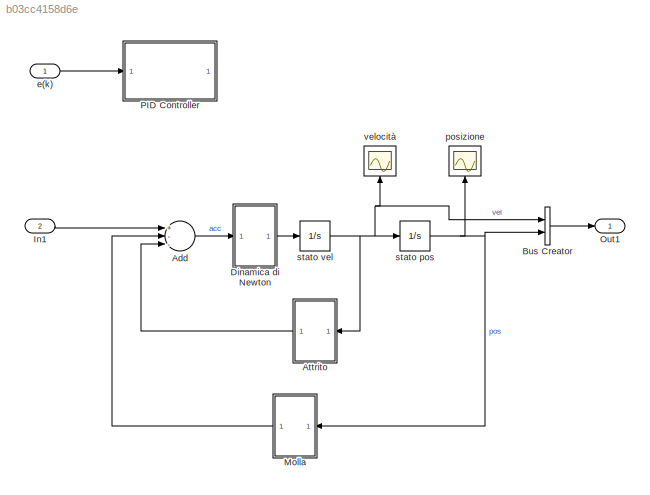
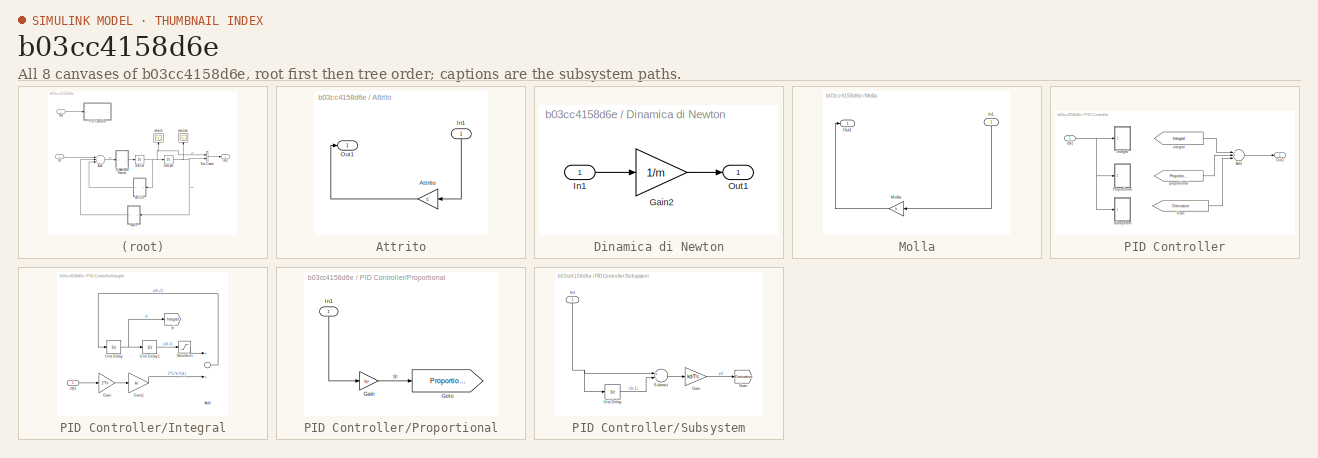
[diagram: thumbnail index - all 8 canvases of the model, root first then tree order]
MODEL slx_b03cc4158d6e
KIND model
BLOCK [Sum] Add
  InputSameDT = off
  Inputs = +--
  OutDataTypeStr = Inherit: Inherit via internal rule
  Ports = [3, 1]
  SaturateOnIntegerOverflow = off
BLOCK [SubSystem] Attrito
  FunctionWithSeparateData = off
  MaskHideContents = off
  MinAlgLoopOccurrences = off
  Opaque = off
  Ports = [1, 1]
  PropExecContextOutsideSubsystem = off
  RTWSystemCode = Auto
  RequestExecContextInheritance = off
BLOCK [Gain] Attrito/Attrito
  Gain = c
  OutDataTypeStr = Inherit: Inherit via internal rule
  ParamDataTypeStr = Inherit: Inherit via internal rule
  SaturateOnIntegerOverflow = off
BLOCK [Inport] Attrito/In1
  IconDisplay = Port number
BLOCK [Outport] Attrito/Out1
  IconDisplay = Port number
BLOCK [BusCreator] Bus Creator
  DisplayOption = bar
  Inputs = 2
  Ports = [2, 1]
BLOCK [SubSystem] Dinamica di Newton
  FunctionWithSeparateData = off
  MaskHideContents = off
  MinAlgLoopOccurrences = off
  Opaque = off
  Ports = [1, 1]
  PropExecContextOutsideSubsystem = off
  RTWSystemCode = Auto
  RequestExecContextInheritance = off
BLOCK [Gain] Dinamica di Newton/Gain2
  Gain = 1/m
  OutDataTypeStr = Inherit: Inherit via internal rule
  ParamDataTypeStr = Inherit: Inherit via internal rule
  SaturateOnIntegerOverflow = off
BLOCK [Inport] Dinamica di Newton/In1
  IconDisplay = Port number
BLOCK [Outport] Dinamica di Newton/Out1
  IconDisplay = Port number
BLOCK [Inport] In1
  IconDisplay = Port number
  Port = 2
BLOCK [SubSystem] Molla
  FunctionWithSeparateData = off
  MaskHideContents = off
  MinAlgLoopOccurrences = off
  Opaque = off
  Ports = [1, 1]
  PropExecContextOutsideSubsystem = off
  RTWSystemCode = Auto
  RequestExecContextInheritance = off
BLOCK [Inport] Molla/In1
  IconDisplay = Port number
BLOCK [Gain] Molla/Molla
  Gain = k
  OutDataTypeStr = Inherit: Inherit via internal rule
  ParamDataTypeStr = Inherit: Inherit via internal rule
  SaturateOnIntegerOverflow = off
BLOCK [Outport] Molla/Out1
  IconDisplay = Port number
BLOCK [Outport] Out1
  IconDisplay = Port number
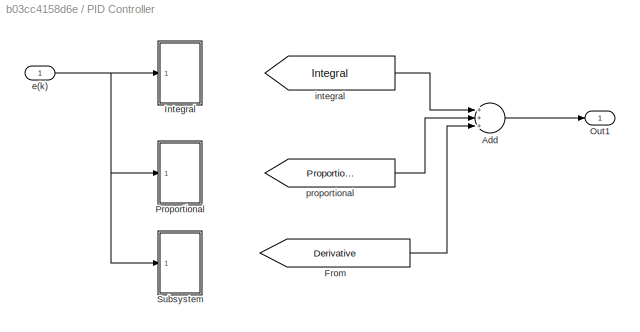
BLOCK [SubSystem] PID Controller
  FunctionWithSeparateData = off
  MaskHideContents = off
  MinAlgLoopOccurrences = off
  Opaque = off
  Ports = [1, 1]
  PropExecContextOutsideSubsystem = off
  RTWSystemCode = Auto
  RequestExecContextInheritance = off
BLOCK [Sum] PID Controller/Add
  InputSameDT = off
  Inputs = +++
  OutDataTypeStr = Inherit: Inherit via internal rule
  Ports = [3, 1]
  SaturateOnIntegerOverflow = off
BLOCK [From] PID Controller/From
  GotoTag = Derivative
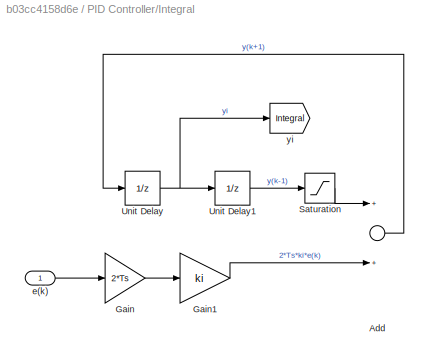
BLOCK [SubSystem] PID Controller/Integral
  FunctionWithSeparateData = off
  MaskHideContents = off
  MinAlgLoopOccurrences = off
  Opaque = off
  Ports = [1]
  PropExecContextOutsideSubsystem = off
  RTWSystemCode = Auto
  RequestExecContextInheritance = off
BLOCK [Sum] PID Controller/Integral/Add
  InputSameDT = off
  OutDataTypeStr = Inherit: Inherit via internal rule
  Ports = [2, 1]
  SaturateOnIntegerOverflow = off
BLOCK [Gain] PID Controller/Integral/Gain
  Gain = 2*Ts
  OutDataTypeStr = Inherit: Inherit via internal rule
  ParamDataTypeStr = Inherit: Inherit via internal rule
  SaturateOnIntegerOverflow = off
BLOCK [Gain] PID Controller/Integral/Gain1
  Gain = ki
  OutDataTypeStr = Inherit: Inherit via internal rule
  ParamDataTypeStr = Inherit: Inherit via internal rule
  SaturateOnIntegerOverflow = off
BLOCK [Saturate] PID Controller/Integral/Saturation
  AttributesFormatString = %<LowerLimit>\n%<UpperLimit>
  InputPortMap = u0
  LowerLimit = -1
  Ports = [1, 1]
  UpperLimit = 1
BLOCK [UnitDelay] PID Controller/Integral/Unit Delay
  InputProcessing = Elements as channels (sample based)
  SampleTime = Ts
BLOCK [UnitDelay] PID Controller/Integral/Unit Delay1
  InputProcessing = Elements as channels (sample based)
  SampleTime = Ts
BLOCK [Inport] PID Controller/Integral/e(k)
  IconDisplay = Port number
BLOCK [Goto] PID Controller/Integral/yi
  GotoTag = Integral
  TagVisibility = global
BLOCK [Outport] PID Controller/Out1
  IconDisplay = Port number
BLOCK [SubSystem] PID Controller/Proportional
  FunctionWithSeparateData = off
  MaskHideContents = off
  MinAlgLoopOccurrences = off
  Opaque = off
  Ports = [1]
  PropExecContextOutsideSubsystem = off
  RTWSystemCode = Auto
  RequestExecContextInheritance = off
BLOCK [Gain] PID Controller/Proportional/Gain
  Gain = kp
  OutDataTypeStr = Inherit: Inherit via internal rule
  ParamDataTypeStr = Inherit: Inherit via internal rule
  SaturateOnIntegerOverflow = off
BLOCK [Goto] PID Controller/Proportional/Goto
  GotoTag = Proportional
  TagVisibility = global
BLOCK [Inport] PID Controller/Proportional/In1
  IconDisplay = Port number
BLOCK [SubSystem] PID Controller/Subsystem
  FunctionWithSeparateData = off
  MaskHideContents = off
  MinAlgLoopOccurrences = off
  Opaque = off
  Ports = [1]
  PropExecContextOutsideSubsystem = off
  RTWSystemCode = Auto
  RequestExecContextInheritance = off
BLOCK [Gain] PID Controller/Subsystem/Gain
  Gain = kd/Ts
  OutDataTypeStr = Inherit: Inherit via internal rule
  ParamDataTypeStr = Inherit: Inherit via internal rule
  SaturateOnIntegerOverflow = off
BLOCK [Goto] PID Controller/Subsystem/Goto
  GotoTag = Derivative
  TagVisibility = global
BLOCK [Inport] PID Controller/Subsystem/In1
  IconDisplay = Port number
BLOCK [Sum] PID Controller/Subsystem/Subtract
  InputSameDT = off
  Inputs = +-
  OutDataTypeStr = Inherit: Inherit via internal rule
  Ports = [2, 1]
  SaturateOnIntegerOverflow = off
BLOCK [UnitDelay] PID Controller/Subsystem/Unit Delay
  InputProcessing = Elements as channels (sample based)
  SampleTime = -1
BLOCK [Inport] PID Controller/e(k)
  IconDisplay = Port number
BLOCK [From] PID Controller/integral
  GotoTag = Integral
  TagVisibility = global
BLOCK [From] PID Controller/proportional
  GotoTag = Proportional
  TagVisibility = global
BLOCK [Inport] e(k)
  IconDisplay = Port number
BLOCK [Scope] posizione
  DataFormat = StructureWithTime
  Floating = off
  NumInputPorts = 1
  Ports = [1]
  SampleTime = 0
  ShowLegends = off
BLOCK [Integrator] stato pos
  InitialCondition = x0
  Ports = [1, 1]
BLOCK [Integrator] stato vel
  Ports = [1, 1]
BLOCK [Scope] velocità
  DataFormat = StructureWithTime
  Floating = off
  NumInputPorts = 1
  Ports = [1]
  SampleTime = 0
  SaveName = ScopeData1
  ShowLegends = off
LINE Add:1 -> Dinamica di Newton:1
LINE Attrito/Attrito:1 -> Attrito/Out1:1
LINE Attrito/In1:1 -> Attrito/Attrito:1
LINE Attrito:1 -> Add:3
LINE Bus Creator:1 -> Out1:1
LINE Dinamica di Newton/Gain2:1 -> Dinamica di Newton/Out1:1
LINE Dinamica di Newton/In1:1 -> Dinamica di Newton/Gain2:1
LINE Dinamica di Newton:1 -> stato vel:1
LINE In1:1 -> Add:1
LINE Molla/In1:1 -> Molla/Molla:1
LINE Molla/Molla:1 -> Molla/Out1:1
LINE Molla:1 -> Add:2
LINE PID Controller/Add:1 -> PID Controller/Out1:1
LINE PID Controller/From:1 -> PID Controller/Add:3
LINE PID Controller/Integral/Add:1 -> PID Controller/Integral/Unit Delay:1
LINE PID Controller/Integral/Gain1:1 -> PID Controller/Integral/Add:2
LINE PID Controller/Integral/Gain:1 -> PID Controller/Integral/Gain1:1
LINE PID Controller/Integral/Saturation:1 -> PID Controller/Integral/Add:1
LINE PID Controller/Integral/Unit Delay1:1 -> PID Controller/Integral/Saturation:1
NET PID Controller/Integral/Unit Delay:1 -> PID Controller/Integral/Unit Delay1:1, PID Controller/Integral/yi:1
LINE PID Controller/Integral/e(k):1 -> PID Controller/Integral/Gain:1
LINE PID Controller/Proportional/Gain:1 -> PID Controller/Proportional/Goto:1
LINE PID Controller/Proportional/In1:1 -> PID Controller/Proportional/Gain:1
LINE PID Controller/Subsystem/Gain:1 -> PID Controller/Subsystem/Goto:1
NET PID Controller/Subsystem/In1:1 -> PID Controller/Subsystem/Subtract:1, PID Controller/Subsystem/Unit Delay:1
LINE PID Controller/Subsystem/Subtract:1 -> PID Controller/Subsystem/Gain:1
LINE PID Controller/Subsystem/Unit Delay:1 -> PID Controller/Subsystem/Subtract:2
NET PID Controller/e(k):1 -> PID Controller/Integral:1, PID Controller/Proportional:1, PID Controller/Subsystem:1
LINE PID Controller/integral:1 -> PID Controller/Add:1
LINE PID Controller/proportional:1 -> PID Controller/Add:2
LINE e(k):1 -> PID Controller:1
NET stato pos:1 -> Bus Creator:2, Molla:1, posizione:1
NET stato vel:1 -> Attrito:1, Bus Creator:1, stato pos:1, velocità:1
note: NET lines group one-source signal fan-out (src -> all destinations, sorted); 1:1 wires keep LINE
